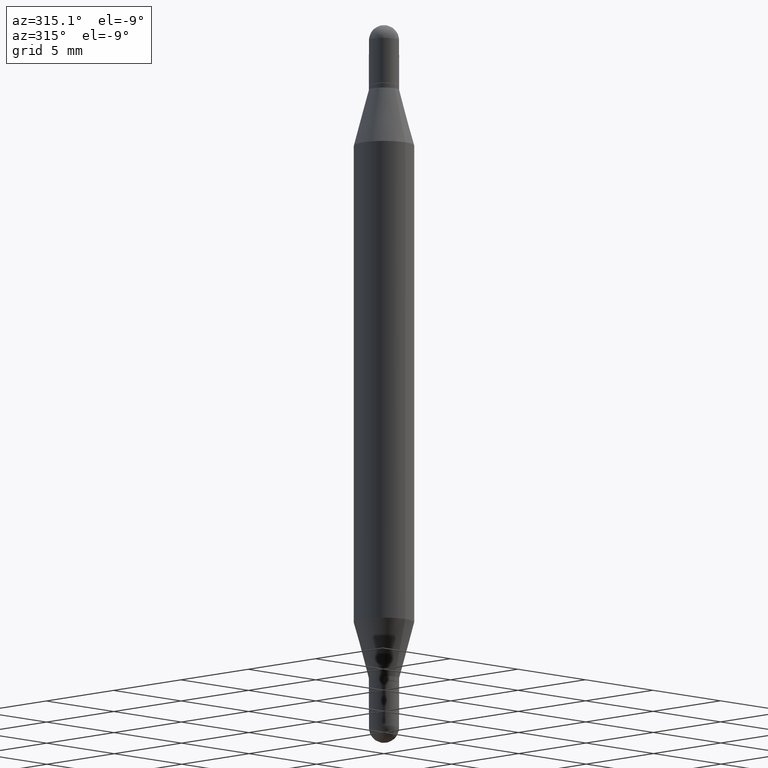
[diagram: clean part render]
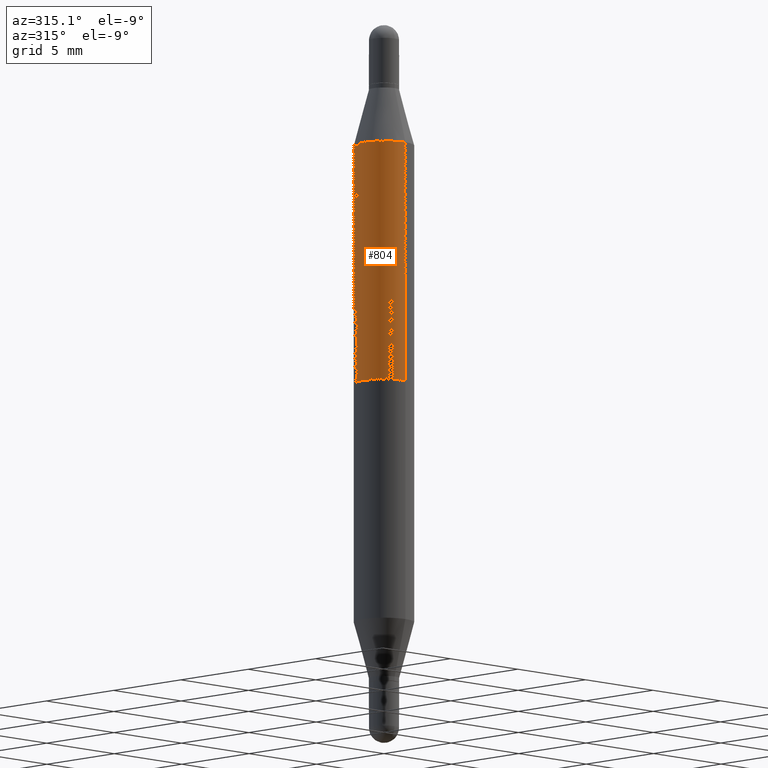
[diagram: same view with one face highlighted and labeled with its STEP entity id]
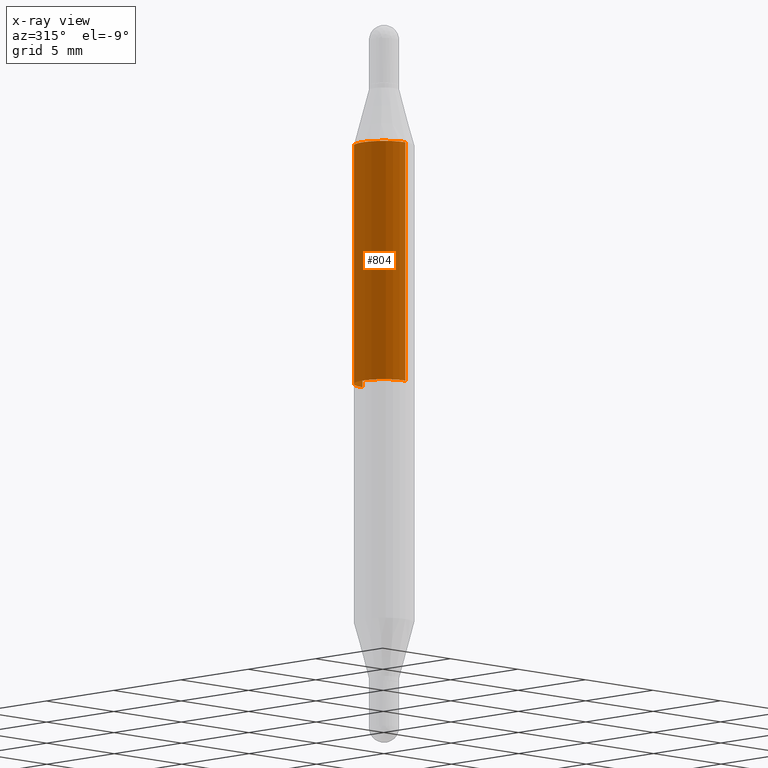
[diagram: x-ray of the same camera — body ghosted, the highlighted face saturated]
A machine part, auxiliary view. The second image highlights one B-rep face of the part: STEP entity #804.
The next image is the same camera in x-ray: the body ghosted, the highlighted face saturated — about 0% of this face is hidden behind the body in this view.
In plain terms, the highlighted cylindrical surface (edge-blend (fillet) strip) has radius 1.5875 mm, axis along (-0, -0, -1).
Its self-contained STEP definition (entity closure, byte-faithful):
#52 = CARTESIAN_POINT ( 'NONE',  ( -4.364351673553916201E-16, -0.06250000000000521805, -1.500000000000000222 ) ) ;
#111 = DIRECTION ( 'NONE',  ( -6.982962677686265922E-15, -1.000000000000000000, 4.370956789862821150E-15 ) ) ;
#154 = VECTOR ( 'NONE', #660, 39.37007874015748143 ) ;
#173 = LINE ( 'NONE', #336, #501 ) ;
#189 = CYLINDRICAL_SURFACE ( 'NONE', #511, 0.06250000000000000000 ) ;
#196 = EDGE_LOOP ( 'NONE', ( #232, #647, #1036, #457 ) ) ;
#199 = CARTESIAN_POINT ( 'NONE',  ( 0.000000000000000000, -5.228321854365732350E-15, -1.500000000000000444 ) ) ;
#232 = ORIENTED_EDGE ( 'NONE', *, *, #401, .F. ) ;
#245 = VERTEX_POINT ( 'NONE', #331 ) ;
#271 = CIRCLE ( 'NONE', #953, 0.06250000000000000000 ) ;
#279 = CARTESIAN_POINT ( 'NONE',  ( 4.287811248607451280E-16, 0.06249999999999737710, -0.7500000000000004441 ) ) ;
#326 = AXIS2_PLACEMENT_3D ( 'NONE', #776, #588, #414 ) ;
#331 = CARTESIAN_POINT ( 'NONE',  ( -4.364351673553731805E-16, -0.06250000000000262290, -0.7499999999999998890 ) ) ;
#334 = VERTEX_POINT ( 'NONE', #279 ) ;
#336 = CARTESIAN_POINT ( 'NONE',  ( 4.287811248607206733E-16, 0.06249999999999477501, -1.500000000000000666 ) ) ;
#401 = EDGE_CURVE ( 'NONE', #686, #499, #271, .T. ) ;
#414 = DIRECTION ( 'NONE',  ( 0.000000000000000000, 1.000000000000000000, -4.370956789862821150E-15 ) ) ;
#457 = ORIENTED_EDGE ( 'NONE', *, *, #988, .F. ) ;
#499 = VERTEX_POINT ( 'NONE', #1085 ) ;
#501 = VECTOR ( 'NONE', #505, 39.37007874015748143 ) ;
#505 = DIRECTION ( 'NONE',  ( -2.445713532774294068E-29, -3.479964929382475098E-15, -1.000000000000000000 ) ) ;
#511 = AXIS2_PLACEMENT_3D ( 'NONE', #199, #622, #111 ) ;
#537 = CARTESIAN_POINT ( 'NONE',  ( 3.053163748328396024E-29, -8.840261609153203283E-16, -0.2516265877365286285 ) ) ;
#560 = EDGE_CURVE ( 'NONE', #245, #334, #993, .T. ) ;
#588 = DIRECTION ( 'NONE',  ( -0.000000000000000000, -3.485547902910486918E-15, -1.000000000000000000 ) ) ;
#622 = DIRECTION ( 'NONE',  ( -2.445713532774294348E-29, -3.479964929382474703E-15, -1.000000000000000000 ) ) ;
#628 = EDGE_CURVE ( 'NONE', #686, #334, #173, .T. ) ;
#647 = ORIENTED_EDGE ( 'NONE', *, *, #628, .T. ) ;
#660 = DIRECTION ( 'NONE',  ( -2.445713532774294068E-29, -3.479964929382475098E-15, -1.000000000000000000 ) ) ;
#686 = VERTEX_POINT ( 'NONE', #765 ) ;
#765 = CARTESIAN_POINT ( 'NONE',  ( 4.287811248607511431E-16, 0.06249999999999909100, -0.2516265877365287951 ) ) ;
#776 = CARTESIAN_POINT ( 'NONE',  ( 1.834285149580721181E-29, -2.618348157328875139E-15, -0.7500000000000002220 ) ) ;
#804 = ADVANCED_FACE ( 'NONE', ( #889 ), #189, .T. ) ;
#806 = DIRECTION ( 'NONE',  ( 2.445713532774294348E-29, 3.479964929382474703E-15, 1.000000000000000000 ) ) ;
#818 = LINE ( 'NONE', #52, #154 ) ;
#889 = FACE_OUTER_BOUND ( 'NONE', #196, .T. ) ;
#953 = AXIS2_PLACEMENT_3D ( 'NONE', #537, #806, #1071 ) ;
#988 = EDGE_CURVE ( 'NONE', #499, #245, #818, .T. ) ;
#993 = CIRCLE ( 'NONE', #326, 0.06250000000000000000 ) ;
#1036 = ORIENTED_EDGE ( 'NONE', *, *, #560, .F. ) ;
#1071 = DIRECTION ( 'NONE',  ( -6.982962677686265922E-15, -1.000000000000000000, 3.278217592397115862E-15 ) ) ;
#1085 = CARTESIAN_POINT ( 'NONE',  ( -4.364351673553610517E-16, -0.06250000000000088818, -0.2516265877365284065 ) ) ;